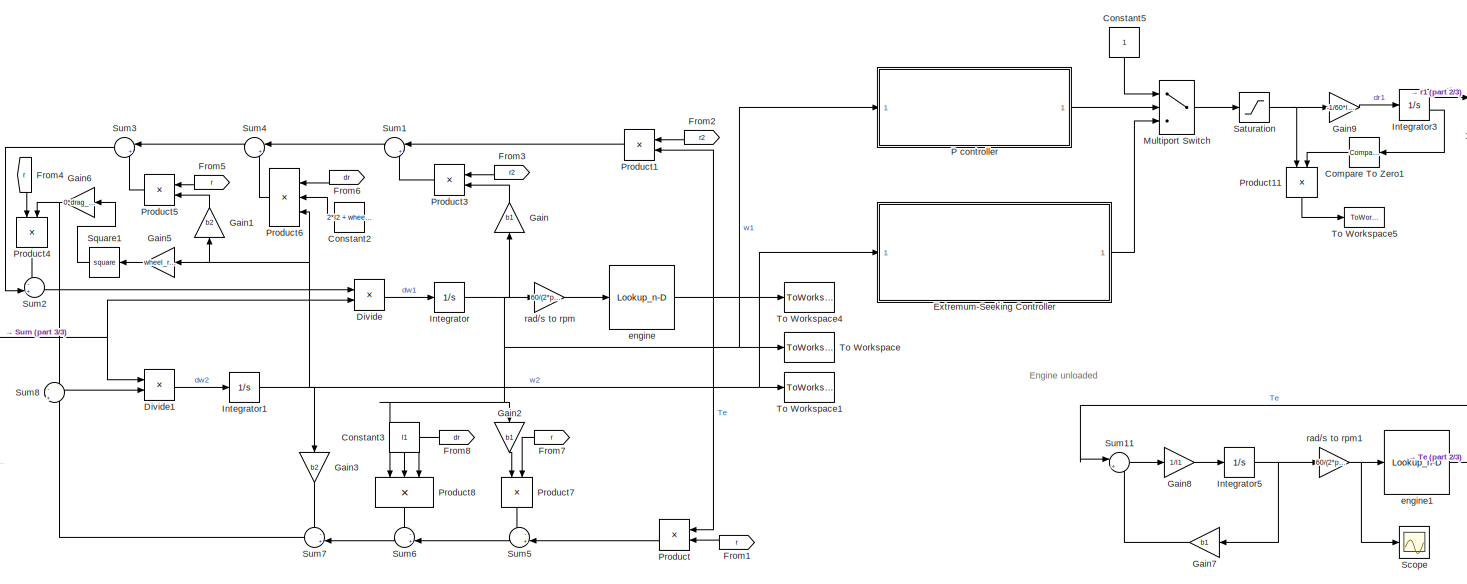
[diagram: root canvas - part 1/3, center side, full height]
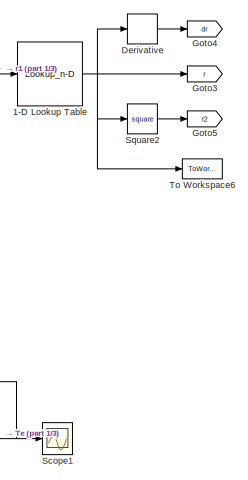
[diagram: root canvas - part 2/3, right side, full height]
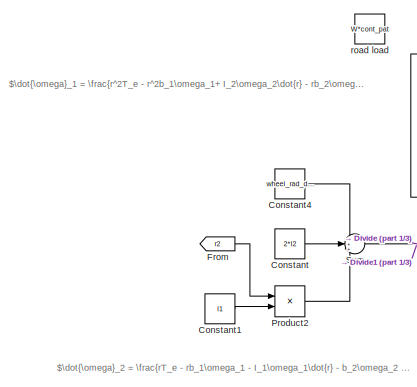
[diagram: root canvas - part 3/3, middle left region]
MODEL slx_b6f6d559046b
KIND model
CONFIG AbsTol = auto
CONFIG EnableMultiTasking = off
CONFIG FixedStep = ts
CONFIG InitFcn = analytical_init;\nload('eg_curve.mat');\nload('bs_m19_torque_curve.mat');\nspeedVector_datasheet = bs_m19_torque_curve(:,1);\ntorqueVector_datasheet = bs_m19_torque_curve(:,2);\nload('UA413_belt_data.mat');
CONFIG MaxStep = auto
CONFIG MinStep = auto
CONFIG RelTol = 1e-3
CONFIG SampleTimeConstraint = Unconstrained
CONFIG Solver = FixedStepAuto
CONFIG SolverName = FixedStepAuto
CONFIG StartTime = 0.0
CONFIG StopTime = T_max
BLOCK [Lookup_n-D] 1-D Lookup Table
  BreakpointsForDimension1 = UA413_belt_data.primary_radius
  InternalRulePriority = Speed
  NumberOfTableDimensions = 1
  Ports = [1, 1]
  RndMeth = Simplest
  Table = UA413_belt_data.cvt_ratio
BLOCK [Reference] Compare To Zero1  REF=simulink/Logic and Bit
Operations/Compare
To Zero
  NameLocation = top
  Ports = [1, 1]
  SourceBlock = simulink/Logic and Bit\nOperations/Compare\nTo Zero
  SourceProductBaseCode = SL
  SourceType = Compare To Zero
BLOCK [Constant] Constant
  Value = 2*I2
BLOCK [Constant] Constant1
  Value = I1
BLOCK [Constant] Constant2
  NameLocation = top
  Value = 2*I2 + wheel_rad_def^2*m/r12/r34
BLOCK [Constant] Constant3
  NameLocation = left
  Value = I1
BLOCK [Constant] Constant4
  Value = wheel_rad_def^2*m/r12/r34
BLOCK [Constant] Constant5
  NameLocation = left
BLOCK [Derivative] Derivative
  CoefficientInTFapproximation = .001
BLOCK [Product] Divide
  Inputs = */
  Ports = [2, 1]
BLOCK [Product] Divide1
  Inputs = /*
  NameLocation = top
  Ports = [2, 1]
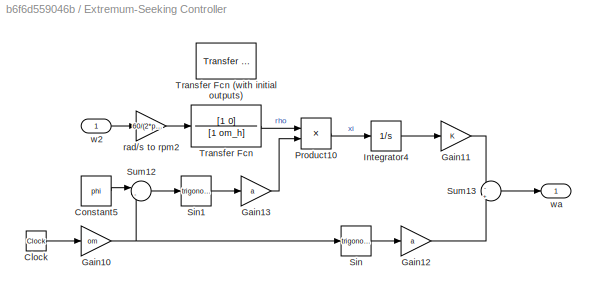
BLOCK [SubSystem] Extremum-Seeking Controller
  Ports = [1, 1]
  RequestExecContextInheritance = off
BLOCK [Clock] Extremum-Seeking Controller/Clock
BLOCK [Constant] Extremum-Seeking Controller/Constant5
  Value = phi
BLOCK [Gain] Extremum-Seeking Controller/Gain10
  Gain = om
BLOCK [Gain] Extremum-Seeking Controller/Gain11
  Gain = K
BLOCK [Gain] Extremum-Seeking Controller/Gain12
  Gain = a
BLOCK [Gain] Extremum-Seeking Controller/Gain13
  Gain = a
BLOCK [Integrator] Extremum-Seeking Controller/Integrator4
  Ports = [1, 1]
BLOCK [Product] Extremum-Seeking Controller/Product10
  Ports = [2, 1]
BLOCK [Trigonometry] Extremum-Seeking Controller/Sin
  Ports = [1, 1]
BLOCK [Trigonometry] Extremum-Seeking Controller/Sin1
  Ports = [1, 1]
BLOCK [Sum] Extremum-Seeking Controller/Sum12
  Inputs = |-+
  Ports = [2, 1]
BLOCK [Sum] Extremum-Seeking Controller/Sum13
  Inputs = -|+
  NameLocation = top
  Ports = [2, 1]
BLOCK [TransferFcn] Extremum-Seeking Controller/Transfer Fcn
  Denominator = [1 om_h]
  Numerator = [1 0]
BLOCK [Reference] Extremum-Seeking Controller/Transfer Fcn (with initial outputs)  REF=simulink_extras/Additional
Linear/Transfer Fcn
(with initial outputs)
  Commented = on
  NameLocation = top
  Ports = [1, 1]
  SourceBlock = simulink_extras/Additional\nLinear/Transfer Fcn\n(with initial outputs)
  SourceProductBaseCode = SL
  SourceType = Transfer Function with Initial Outputs
BLOCK [Gain] Extremum-Seeking Controller/rad//s to rpm2
  Gain = 60/(2*pi)
BLOCK [Inport] Extremum-Seeking Controller/w2
BLOCK [Outport] Extremum-Seeking Controller/wa
BLOCK [From] From
  GotoTag = r2
BLOCK [From] From1
  GotoTag = r
  NameLocation = top
BLOCK [From] From2
  GotoTag = r2
  NameLocation = top
BLOCK [From] From3
  GotoTag = r2
  NameLocation = top
BLOCK [From] From4
  GotoTag = r
  NameLocation = left
BLOCK [From] From5
  GotoTag = r
  NameLocation = top
BLOCK [From] From6
  GotoTag = dr
  NameLocation = top
BLOCK [From] From7
  GotoTag = r
  NameLocation = right
BLOCK [From] From8
  GotoTag = dr
  NameLocation = top
BLOCK [Gain] Gain
  Gain = b1
  NameLocation = right
BLOCK [Gain] Gain1
  Gain = b2
  NameLocation = right
BLOCK [Gain] Gain2
  Gain = b1
  NameLocation = left
BLOCK [Gain] Gain3
  Gain = b2
  NameLocation = left
BLOCK [Gain] Gain5
  Gain = wheel_rad_def/r12/r34
  NameLocation = top
BLOCK [Gain] Gain6
  Gain = 0*drag_coeff*wheel_rad_def
  NameLocation = top
BLOCK [Gain] Gain7
  Commented = on
  Gain = b1
  NameLocation = top
BLOCK [Gain] Gain8
  Commented = on
  Gain = 1/I1
BLOCK [Gain] Gain9
  Gain = -1/60*lead/shift_fork_amp/tand(sheave_angle)
BLOCK [Goto] Goto3
  GotoTag = r
BLOCK [Goto] Goto4
  GotoTag = dr
BLOCK [Goto] Goto5
  GotoTag = r2
BLOCK [Integrator] Integrator
  InitialCondition = w1_init
  LimitOutput = on
  LowerSaturationLimit = min(speedVector)*2*pi/60
  Ports = [1, 1]
BLOCK [Integrator] Integrator1
  InitialCondition = w2_init
  LimitOutput = on
  LowerSaturationLimit = 0
  Ports = [1, 1]
BLOCK [Integrator] Integrator3
  InitialCondition = r_prim_min
  LimitOutput = on
  LowerSaturationLimit = r_prim_min
  Ports = [1, 2]
  ShowSaturationPort = on
  UpperSaturationLimit = r_prim_max
BLOCK [Integrator] Integrator5
  Commented = on
  InitialCondition = w1_init
  LimitOutput = on
  LowerSaturationLimit = min(speedVector)*2*pi/60
  Ports = [1, 1]
BLOCK [MultiPortSwitch] Multiport Switch
  InputSameDT = off
  Inputs = 2
  Ports = [3, 1]
  SaturateOnIntegerOverflow = off
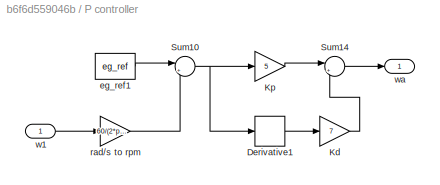
BLOCK [SubSystem] P controller
  Ports = [1, 1]
  RequestExecContextInheritance = off
BLOCK [Derivative] P controller/Derivative1
  CoefficientInTFapproximation = .01
  Commented = on
BLOCK [Gain] P controller/Kd
  Commented = on
  Gain = 7
BLOCK [Gain] P controller/Kp
  Gain = 5
BLOCK [Sum] P controller/Sum10
  Inputs = |+-
  Ports = [2, 1]
BLOCK [Sum] P controller/Sum14
  Inputs = |++
  Ports = [2, 1]
BLOCK [Constant] P controller/eg_ref1
  Value = eg_ref
BLOCK [Gain] P controller/rad//s to rpm
  Gain = 60/(2*pi)
BLOCK [Inport] P controller/w1
BLOCK [Outport] P controller/wa
BLOCK [Product] Product
  NameLocation = top
  Ports = [2, 1]
BLOCK [Product] Product1
  NameLocation = top
  Ports = [2, 1]
BLOCK [Product] Product11
  NameLocation = left
  Ports = [2, 1]
BLOCK [Product] Product2
  Ports = [2, 1]
BLOCK [Product] Product3
  NameLocation = top
  Ports = [2, 1]
BLOCK [Product] Product4
  NameLocation = left
  Ports = [2, 1]
BLOCK [Product] Product5
  NameLocation = top
  Ports = [2, 1]
BLOCK [Product] Product6
  Inputs = 3
  NameLocation = top
  Ports = [3, 1]
BLOCK [Product] Product7
  NameLocation = left
  Ports = [2, 1]
BLOCK [Product] Product8
  Inputs = 3
  NameLocation = left
  Ports = [3, 1]
BLOCK [Saturate] Saturation
  LowerLimit = -motor_max
  UpperLimit = motor_max
BLOCK [Scope] Scope
  Commented = on
  Floating = off
  NumInputPorts = 1
  Ports = [1]
  ScopeSpecificationString = Simulink.scopes.TimeScopeBlockCfg('CurrentConfiguration', extmgr.ConfigurationSet(extmgr.Configuration('Core','General UI',true),extmgr.Configuration('Core','Source UI',true),extmgr.Configuration('Sources','WiredSimulink',true),extmgr.Configuration('Visuals','Time Domain',true,'SerializedDisplays',{struct('MinYLimReal','1421.91789','MaxYLimReal','4202.73902','YLabelReal','','MinYLimMag','1421.9178...<+1452ch>
BLOCK [Scope] Scope1
  Commented = on
  Floating = off
  NumInputPorts = 1
  Ports = [1]
  ScopeSpecificationString = Simulink.scopes.TimeScopeBlockCfg('CurrentConfiguration', extmgr.ConfigurationSet(extmgr.Configuration('Core','General UI',true),extmgr.Configuration('Core','Source UI',true),extmgr.Configuration('Sources','WiredSimulink',true,'DataLoggingVariableName','ScopeData1'),extmgr.Configuration('Visuals','Time Domain',true,'SerializedDisplays',{struct('MinYLimReal','-2.09582','MaxYLimReal','22.97226','YLa...<+1395ch>
BLOCK [Math] Square1
  NameLocation = top
  Operator = square
  Ports = [1, 1]
BLOCK [Math] Square2
  Operator = square
  Ports = [1, 1]
BLOCK [Sum] Sum
  Inputs = +++
  Ports = [3, 1]
BLOCK [Sum] Sum1
  Inputs = |+-
  NameLocation = top
  Ports = [2, 1]
BLOCK [Sum] Sum11
  Commented = on
  Inputs = |+-
  Ports = [2, 1]
BLOCK [Sum] Sum2
  Inputs = -+|
  Ports = [2, 1]
BLOCK [Sum] Sum3
  Inputs = |+-
  NameLocation = top
  Ports = [2, 1]
BLOCK [Sum] Sum4
  Inputs = |++
  NameLocation = top
  Ports = [2, 1]
BLOCK [Sum] Sum5
  Inputs = -+|
  NameLocation = top
  Ports = [2, 1]
BLOCK [Sum] Sum6
  Inputs = -+|
  NameLocation = top
  Ports = [2, 1]
BLOCK [Sum] Sum7
  Inputs = -+|
  NameLocation = top
  Ports = [2, 1]
BLOCK [Sum] Sum8
  Inputs = -|+
  Ports = [2, 1]
BLOCK [ToWorkspace] To Workspace
  FixptAsFi = on
  MaxDataPoints = inf
  Ports = [1]
  SampleTime = -1
  SaveFormat = Timeseries
  VariableName = w1
BLOCK [ToWorkspace] To Workspace1
  FixptAsFi = on
  MaxDataPoints = inf
  Ports = [1]
  SampleTime = -1
  SaveFormat = Timeseries
  VariableName = w2
BLOCK [ToWorkspace] To Workspace4
  FixptAsFi = on
  MaxDataPoints = inf
  Ports = [1]
  SampleTime = -1
  SaveFormat = Timeseries
  VariableName = Te
BLOCK [ToWorkspace] To Workspace5
  FixptAsFi = on
  MaxDataPoints = inf
  Ports = [1]
  SampleTime = -1
  SaveFormat = Timeseries
  VariableName = u
BLOCK [ToWorkspace] To Workspace6
  FixptAsFi = on
  MaxDataPoints = inf
  Ports = [1]
  SampleTime = -1
  SaveFormat = Timeseries
  VariableName = r
BLOCK [Lookup_n-D] engine
  BreakpointsForDimension1 = speedVector
  InternalRulePriority = Speed
  NumberOfTableDimensions = 1
  Ports = [1, 1]
  RndMeth = Simplest
  Table = torqueVector
BLOCK [Lookup_n-D] engine1
  BreakpointsForDimension1 = speedVector
  Commented = on
  InternalRulePriority = Speed
  NumberOfTableDimensions = 1
  Ports = [1, 1]
  RndMeth = Simplest
  Table = torqueVector
BLOCK [Gain] rad//s to rpm
  Gain = 60/(2*pi)
BLOCK [Gain] rad//s to rpm1
  Commented = on
  Gain = 60/(2*pi)
BLOCK [Constant] road load
  Commented = on
  NameLocation = top
  Value = W*cont_pat
ANNOTATION (root): $\dot{\omega}_1 = \frac{r^2T_e - r^2b_1\omega_1+ I_2\omega_2\dot{r} - rb_2\omega_2 - rT_l}{I_2+r^2I_1}$
ANNOTATION (root): $\dot{\omega}_2 = \frac{rT_e - rb_1\omega_1 - I_1\omega_1\dot{r} - b_2\omega_2 - T_l}{I_2+r^2I_1}$
ANNOTATION (root): Engine unloaded
NET 1-D Lookup Table:1 -> Derivative:1, Goto3:1, Square2:1, To Workspace6:1
LINE Compare To Zero1:1 -> Product11:2
LINE Constant1:1 -> Product2:2
LINE Constant2:1 -> Product6:2
LINE Constant3:1 -> Product8:2
LINE Constant4:1 -> Sum:1
LINE Constant5:1 -> Multiport Switch:1
LINE Constant:1 -> Sum:2
LINE Derivative:1 -> Goto4:1
LINE Divide1:1 -> Integrator1:1
LINE Divide:1 -> Integrator:1
LINE Extremum-Seeking Controller/Clock:1 -> Extremum-Seeking Controller/Gain10:1
LINE Extremum-Seeking Controller/Constant5:1 -> Extremum-Seeking Controller/Sum12:1
NET Extremum-Seeking Controller/Gain10:1 -> Extremum-Seeking Controller/Sin:1, Extremum-Seeking Controller/Sum12:2
LINE Extremum-Seeking Controller/Gain11:1 -> Extremum-Seeking Controller/Sum13:1
LINE Extremum-Seeking Controller/Gain12:1 -> Extremum-Seeking Controller/Sum13:2
LINE Extremum-Seeking Controller/Gain13:1 -> Extremum-Seeking Controller/Product10:2
LINE Extremum-Seeking Controller/Integrator4:1 -> Extremum-Seeking Controller/Gain11:1
LINE Extremum-Seeking Controller/Product10:1 -> Extremum-Seeking Controller/Integrator4:1
LINE Extremum-Seeking Controller/Sin1:1 -> Extremum-Seeking Controller/Gain13:1
LINE Extremum-Seeking Controller/Sin:1 -> Extremum-Seeking Controller/Gain12:1
LINE Extremum-Seeking Controller/Sum12:1 -> Extremum-Seeking Controller/Sin1:1
LINE Extremum-Seeking Controller/Sum13:1 -> Extremum-Seeking Controller/wa:1
LINE Extremum-Seeking Controller/Transfer Fcn:1 -> Extremum-Seeking Controller/Product10:1
LINE Extremum-Seeking Controller/rad//s to rpm2:1 -> Extremum-Seeking Controller/Transfer Fcn:1
LINE Extremum-Seeking Controller/w2:1 -> Extremum-Seeking Controller/rad//s to rpm2:1
LINE Extremum-Seeking Controller:1 -> Multiport Switch:3
LINE From1:1 -> Product:2
LINE From2:1 -> Product1:1
LINE From3:1 -> Product3:1
LINE From4:1 -> Product4:1
LINE From5:1 -> Product5:1
LINE From6:1 -> Product6:1
LINE From7:1 -> Product7:2
LINE From8:1 -> Product8:3
LINE From:1 -> Product2:1
LINE Gain1:1 -> Product5:2
LINE Gain2:1 -> Product7:1
LINE Gain3:1 -> Sum7:1
LINE Gain5:1 -> Square1:1
NET Gain6:1 -> Product4:2, Sum8:1
LINE Gain7:1 -> Sum11:2
LINE Gain8:1 -> Integrator5:1
LINE Gain9:1 -> Integrator3:1
LINE Gain:1 -> Product3:2
NET Integrator1:1 -> Extremum-Seeking Controller:1, Gain1:1, Gain3:1, Gain5:1, Product6:3, To Workspace1:1
LINE Integrator3:1 -> 1-D Lookup Table:1
LINE Integrator3:2 -> Compare To Zero1:1
NET Integrator5:1 -> Gain7:1, rad//s to rpm1:1
NET Integrator:1 -> Gain2:1, Gain:1, P controller:1, Product8:1, To Workspace:1, rad//s to rpm:1
LINE Multiport Switch:1 -> Saturation:1
LINE P controller/Derivative1:1 -> P controller/Kd:1
LINE P controller/Kd:1 -> P controller/Sum14:2
LINE P controller/Kp:1 -> P controller/Sum14:1
NET P controller/Sum10:1 -> P controller/Derivative1:1, P controller/Kp:1
LINE P controller/Sum14:1 -> P controller/wa:1
LINE P controller/eg_ref1:1 -> P controller/Sum10:1
LINE P controller/rad//s to rpm:1 -> P controller/Sum10:2
LINE P controller/w1:1 -> P controller/rad//s to rpm:1
LINE P controller:1 -> Multiport Switch:2
LINE Product11:1 -> To Workspace5:1
LINE Product1:1 -> Sum1:1
LINE Product2:1 -> Sum:3
LINE Product3:1 -> Sum1:2
LINE Product4:1 -> Sum2:1
LINE Product5:1 -> Sum3:2
LINE Product6:1 -> Sum4:2
LINE Product7:1 -> Sum5:1
LINE Product8:1 -> Sum6:1
LINE Product:1 -> Sum5:2
NET Saturation:1 -> Gain9:1, Product11:1
LINE Square1:1 -> Gain6:1
LINE Square2:1 -> Goto5:1
LINE Sum11:1 -> Gain8:1
LINE Sum1:1 -> Sum4:1
LINE Sum2:1 -> Divide:1
LINE Sum3:1 -> Sum2:2
LINE Sum4:1 -> Sum3:1
LINE Sum5:1 -> Sum6:2
LINE Sum6:1 -> Sum7:2
LINE Sum7:1 -> Sum8:2
LINE Sum8:1 -> Divide1:2
NET Sum:1 -> Divide1:1, Divide:2
NET engine1:1 -> Scope1:1, Sum11:1
NET engine:1 -> Product1:2, Product:1, To Workspace4:1
NET rad//s to rpm1:1 -> Scope:1, engine1:1
LINE rad//s to rpm:1 -> engine:1
note: NET lines group one-source signal fan-out (src -> all destinations, sorted); 1:1 wires keep LINE
